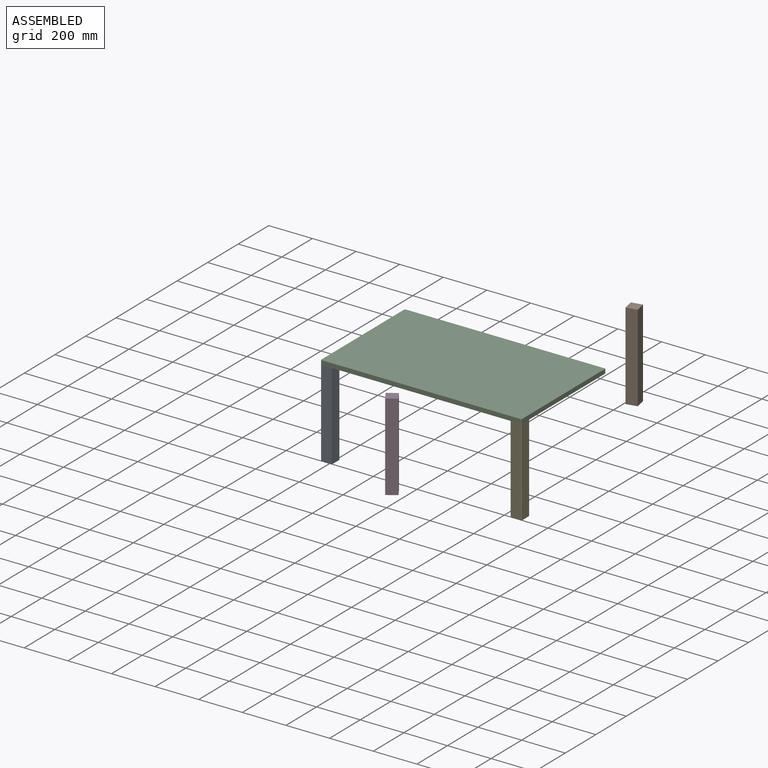
[diagram: assembled view]
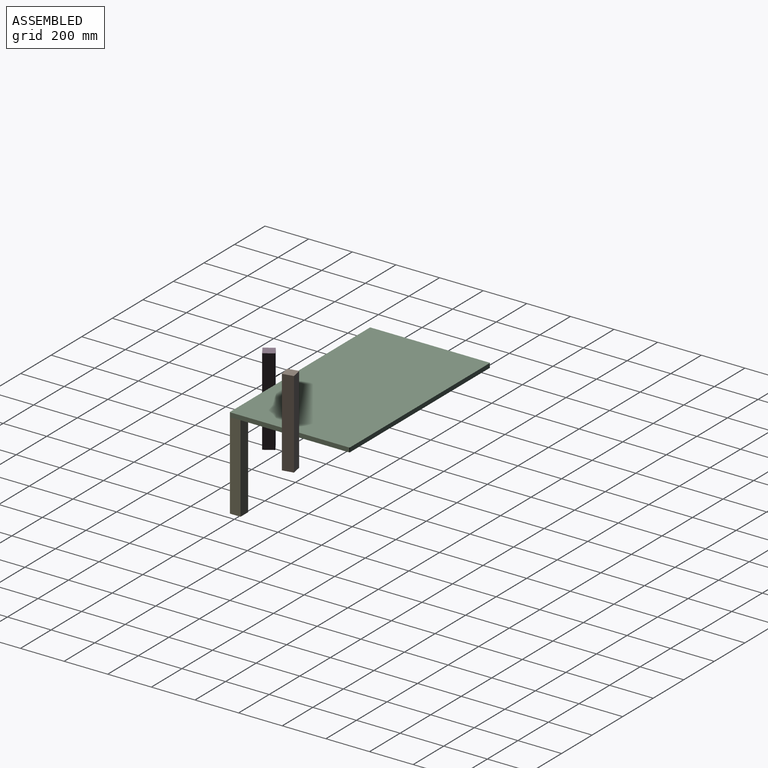
[diagram: assembled view, second angle]
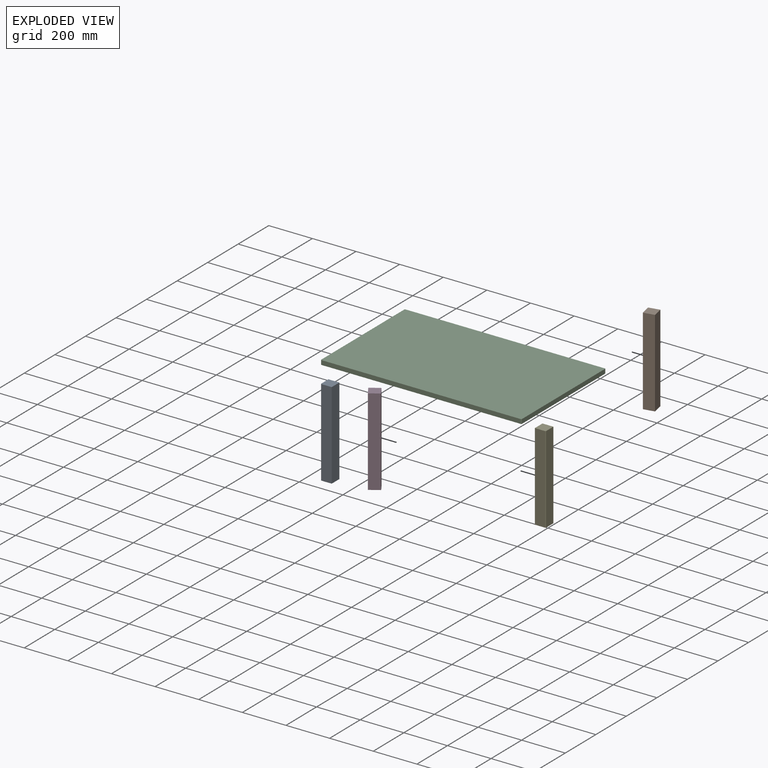
[diagram: exploded view]
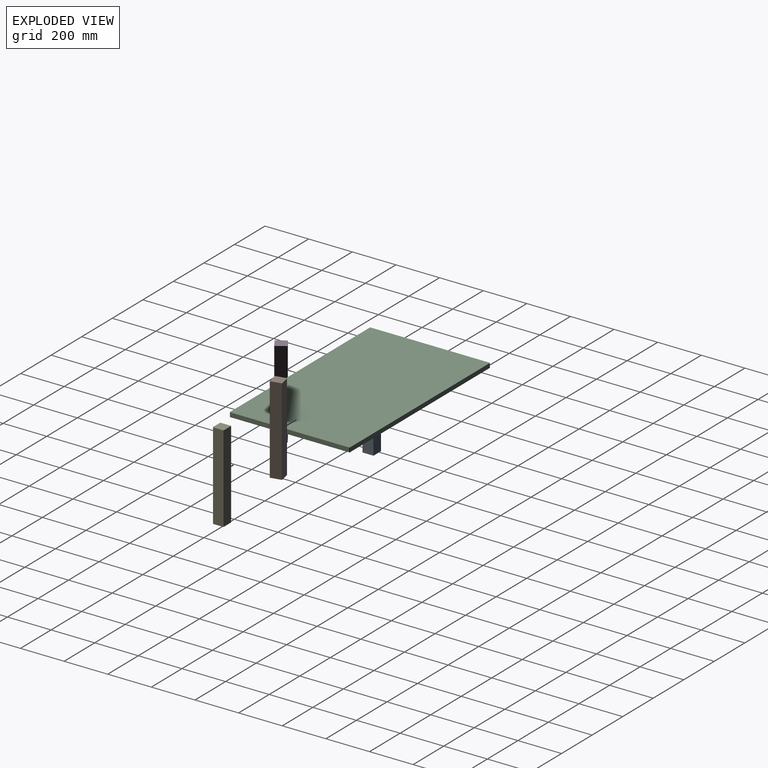
[diagram: exploded view, second angle]
ASSEMBLY  parts=5 mates=3
PART A: 7 faces, bbox 50x50x400 mm
  f0: plane 400x50mm, normal (0,1,0), area 20000mm2, adj f1,f3,f4,f5
  f1: plane 400x47mm, normal (-1,0,0), area 18800mm2, adj f0,f4,f5,f6
  f2: plane 400x47mm, normal (0,-1,0), area 18800mm2, adj f3,f4,f5,f6
  f3: plane 400x50mm, normal (1,0,0), area 20000mm2, adj f0,f2,f4,f5
  f4: plane 50x50mm, normal (0,0,1), area 2498.1mm2, adj f0,f1,f2,f3,f6
  f5: plane 50x50mm, normal (0,0,-1), area 2498.1mm2, adj f0,f1,f2,f3,f6
  f6: cylinder r=3mm len=400mm, axis (0,0,-1), area 1885mm2, adj f1,f2,f4,f5
PART B: same geometry as A
PART C: 10 faces, bbox 920x550x20 mm
  f0: plane 544x20mm, normal (1,0,0), area 10880mm2, adj f4,f5,f6,f9
  f1: plane 914x20mm, normal (0,1,0), area 18280mm2, adj f4,f5,f6,f7
  f2: plane 544x20mm, normal (-1,0,0), area 10880mm2, adj f4,f5,f7,f8
  f3: plane 914x20mm, normal (0,-1,0), area 18280mm2, adj f4,f5,f8,f9
  f4: plane 920x550mm, normal (0,0,1), area 505992.3mm2, adj f0,f1,f2,f3,f6,f7,f8,f9
  f5: plane 920x550mm, normal (0,0,-1), area 505992.3mm2, adj f0,f1,f2,f3,f6,f7,f8,f9
  f6: cylinder r=3mm len=20mm, axis (0,0,1), area 94.2mm2, adj f0,f1,f4,f5
  f7: cylinder r=3mm len=20mm, axis (0,0,-1), area 94.2mm2, adj f1,f2,f4,f5
  f8: cylinder r=3mm len=20mm, axis (0,0,1), area 94.2mm2, adj f2,f3,f4,f5
  f9: cylinder r=3mm len=20mm, axis (0,0,-1), area 94.2mm2, adj f0,f3,f4,f5
PART D: same geometry as A
PART E: same geometry as A
PLACE A t=(-349.91,445.12,-36.02)mm
PLACE B rot(axis=(0,0,-1),78.5deg) t=(760.66,850.54,346.34)mm
PLACE C t=(85.09,695.12,363.98)mm
PLACE D rot(axis=(0,0,-1),146.7deg) t=(62.27,262.2,12.73)mm
PLACE E rot(axis=(0,0,1),90deg) t=(520.09,445.12,-36.02)mm
MATE planar E.f2 <-> C.f0  axis (1,0,0) through (545.09,446.62,163.98)mm
MATE fastened C.f5 <-> E.f4  axis (0,0,1) through (542.09,420.12,363.98)mm
MATE fastened A.f4 <-> C.f5  axis (0,0,1) through (-374.91,423.12,363.98)mm
